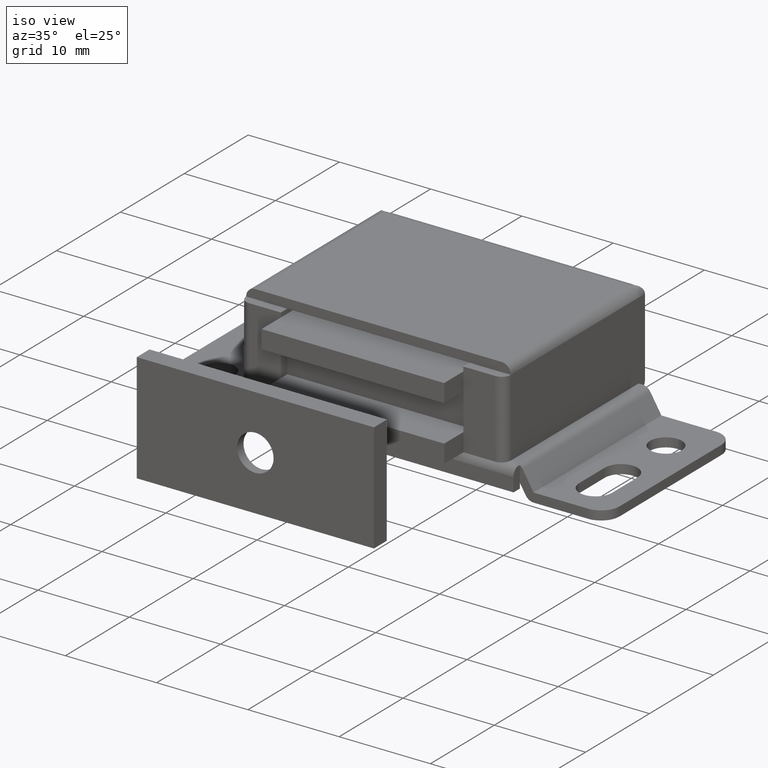
[diagram: clean part render]
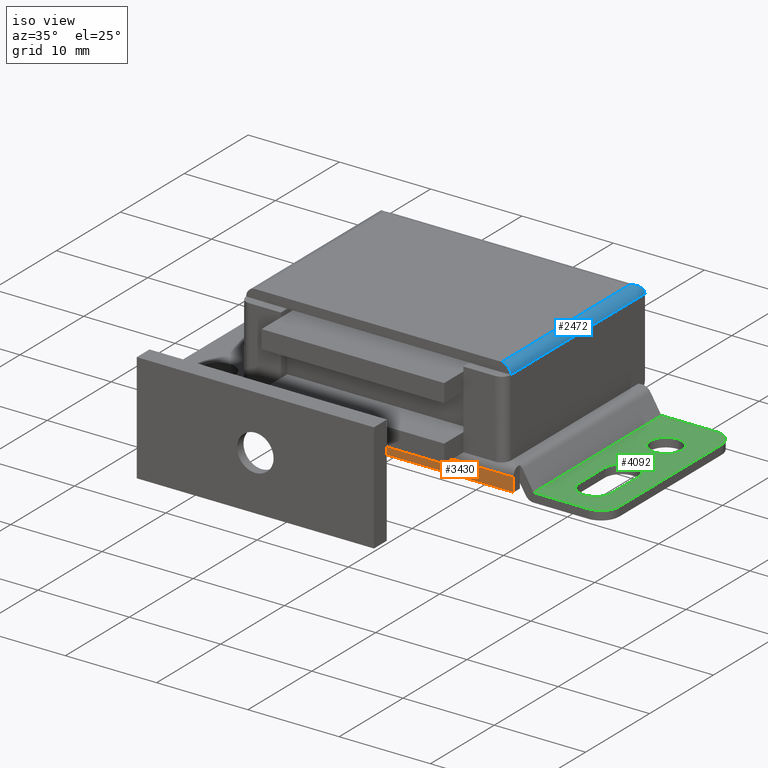
[diagram: same view with three faces highlighted in distinct colors, each labeled with its STEP entity id]
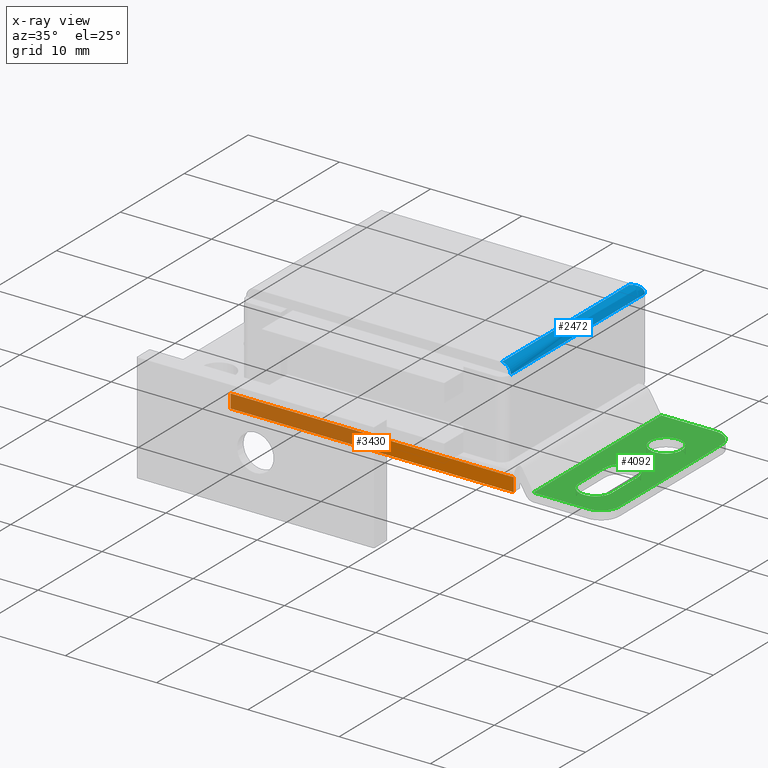
[diagram: x-ray of the same camera — body ghosted, the three highlighted faces saturated]
A machine part, iso view with three faces highlighted in distinct colors.
The next image is the same camera in x-ray (body ghosted, the three faces saturated) — at least one of them is partly hidden behind the body in this view.
Their STEP definitions:

[orange] entity #3430 — the highlighted face is a freeform B-spline surface patch.
#3193=CARTESIAN_POINT('',(-15.500000000000000,-22.0,2.499999999999945));
#3194=VERTEX_POINT('',#3193);
#3208=CARTESIAN_POINT('',(15.500000000000000,-22.0,2.499999999999945));
#3209=VERTEX_POINT('',#3208);
#3210=CARTESIAN_POINT('',(15.500000000000000,-22.0,2.499999999999945));
#3211=CARTESIAN_POINT('',(-15.500000000000000,-22.0,2.499999999999945));
#3212=QUASI_UNIFORM_CURVE('',1,(#3210,#3211),.UNSPECIFIED.,.F.,.U.);
#3213=EDGE_CURVE('',#3209,#3194,#3212,.T.);
#3354=CARTESIAN_POINT('',(-15.500000000000000,-22.0,0.999999999999943));
#3355=VERTEX_POINT('',#3354);
#3356=CARTESIAN_POINT('',(-15.500000000000000,-22.0,0.999999999999943));
#3357=CARTESIAN_POINT('',(-15.500000000000000,-22.0,2.499999999999945));
#3358=QUASI_UNIFORM_CURVE('',1,(#3356,#3357),.UNSPECIFIED.,.F.,.U.);
#3359=EDGE_CURVE('',#3355,#3194,#3358,.T.);
#3386=CARTESIAN_POINT('',(15.500000000000000,-22.0,0.999999999999943));
#3387=VERTEX_POINT('',#3386);
#3388=CARTESIAN_POINT('',(15.500000000000000,-22.0,0.999999999999943));
#3389=CARTESIAN_POINT('',(15.500000000000000,-22.0,2.499999999999945));
#3390=QUASI_UNIFORM_CURVE('',1,(#3388,#3389),.UNSPECIFIED.,.F.,.U.);
#3391=EDGE_CURVE('',#3387,#3209,#3390,.T.);
#3415=CARTESIAN_POINT('',(-17.048449939915990,-22.0,2.574924997092654));
#3416=CARTESIAN_POINT('',(-17.048449939915990,-22.0,0.925074962674099));
#3417=CARTESIAN_POINT('',(17.048450771400780,-22.0,2.574924997092654));
#3418=CARTESIAN_POINT('',(17.048450771400780,-22.0,0.925074962674099));
#3419=B_SPLINE_SURFACE_WITH_KNOTS('',1,1,((#3415,#3417),(#3416,#3418)),.UNSPECIFIED.,.F.,.F.,.U.,(2,2),(2,2),(0.041708334948495,0.958291687403247),(0.0,34.096900711316771),.UNSPECIFIED.);
#3420=ORIENTED_EDGE('',*,*,#3391,.T.);
#3421=ORIENTED_EDGE('',*,*,#3213,.T.);
#3422=ORIENTED_EDGE('',*,*,#3359,.F.);
#3423=CARTESIAN_POINT('',(15.500000000000000,-22.0,0.999999999999943));
#3424=CARTESIAN_POINT('',(-15.500000000000000,-22.0,0.999999999999943));
#3425=QUASI_UNIFORM_CURVE('',1,(#3423,#3424),.UNSPECIFIED.,.F.,.U.);
#3426=EDGE_CURVE('',#3387,#3355,#3425,.T.);
#3427=ORIENTED_EDGE('',*,*,#3426,.F.);
#3428=EDGE_LOOP('',(#3420,#3421,#3422,#3427));
#3429=FACE_OUTER_BOUND('',#3428,.T.);
#3430=ADVANCED_FACE('',(#3429),#3419,.T.);

[blue] entity #2472 — the highlighted face is a freeform B-spline surface patch.
#1988=CARTESIAN_POINT('',(14.500000000000000,-1.009999999999954,12.0));
#1989=VERTEX_POINT('',#1988);
#1997=CARTESIAN_POINT('',(14.500000000000000,-21.0,12.0));
#1998=VERTEX_POINT('',#1997);
#1999=CARTESIAN_POINT('',(14.500000000000000,-1.009999999999954,12.0));
#2000=CARTESIAN_POINT('',(14.500000000000000,-21.0,12.0));
#2001=QUASI_UNIFORM_CURVE('',1,(#1999,#2000),.UNSPECIFIED.,.F.,.U.);
#2002=EDGE_CURVE('',#1989,#1998,#2001,.T.);
#2030=CARTESIAN_POINT('',(13.500000000000000,-1.0,13.0));
#2031=VERTEX_POINT('',#2030);
#2046=CARTESIAN_POINT('',(13.500000000000000,-21.0,13.0));
#2047=VERTEX_POINT('',#2046);
#2053=CARTESIAN_POINT('',(13.500000000000000,-21.0,13.0));
#2054=CARTESIAN_POINT('',(13.500000000000000,-1.0,13.0));
#2055=QUASI_UNIFORM_CURVE('',1,(#2053,#2054),.UNSPECIFIED.,.F.,.U.);
#2056=EDGE_CURVE('',#2047,#2031,#2055,.T.);
#2214=CARTESIAN_POINT('',(14.500000000000000,-21.0,12.0));
#2215=CARTESIAN_POINT('',(14.500000000000000,-21.000000000000004,13.000000000000004));
#2216=CARTESIAN_POINT('',(13.500000000000000,-21.0,13.0));
#2224=(BOUNDED_CURVE()B_SPLINE_CURVE(2,(#2214,#2215,#2216),.UNSPECIFIED.,.F.,.U.)CURVE()GEOMETRIC_REPRESENTATION_ITEM()QUASI_UNIFORM_CURVE()RATIONAL_B_SPLINE_CURVE((1.0,0.707106781186548,1.0))REPRESENTATION_ITEM(''));
#2225=EDGE_CURVE('',#1998,#2047,#2224,.T.);
#2389=CARTESIAN_POINT('',(14.500000000000000,-1.0,12.0));
#2390=VERTEX_POINT('',#2389);
#2396=CARTESIAN_POINT('',(14.500000000000000,-1.009999999999954,12.0));
#2397=CARTESIAN_POINT('',(14.500000000000000,-1.0,12.0));
#2398=QUASI_UNIFORM_CURVE('',1,(#2396,#2397),.UNSPECIFIED.,.F.,.U.);
#2399=EDGE_CURVE('',#1989,#2390,#2398,.T.);
#2432=CARTESIAN_POINT('',(13.473823051692129,0.525000000000001,12.999657324975560));
#2433=CARTESIAN_POINT('',(13.473823051692129,-21.538125000000001,12.999657324975560));
#2434=CARTESIAN_POINT('',(14.574984800554718,0.525000000000000,13.028492260166260));
#2435=CARTESIAN_POINT('',(14.574984800554718,-21.538125000000008,13.028492260166260));
#2436=CARTESIAN_POINT('',(14.497524479380806,0.525000000000001,11.929679924374023));
#2437=CARTESIAN_POINT('',(14.497524479380806,-21.538125000000012,11.929679924374023));
#2445=(BOUNDED_SURFACE()B_SPLINE_SURFACE(1,2,((#2432,#2434,#2436),(#2433,#2435,#2437)),.UNSPECIFIED.,.F.,.F.,.U.)B_SPLINE_SURFACE_WITH_KNOTS((2,2),(3,3),(0.0,22.063125000000010),(0.0,0.994518632334191),.UNSPECIFIED.)GEOMETRIC_REPRESENTATION_ITEM()RATIONAL_B_SPLINE_SURFACE(((1.0,0.670944223154768,0.996392648609106),(1.0,0.670944223154768,0.996392648609106)))REPRESENTATION_ITEM('')SURFACE());
#2446=CARTESIAN_POINT('',(14.500000000000000,0.0,12.0));
#2447=VERTEX_POINT('',#2446);
#2448=CARTESIAN_POINT('',(13.500000000000000,-1.0,13.0));
#2449=CARTESIAN_POINT('',(14.499999999999996,-8.673617E-016,12.999999957853152));
#2450=CARTESIAN_POINT('',(14.500000000000000,-6.505213E-016,12.0));
#2458=(BOUNDED_CURVE()B_SPLINE_CURVE(2,(#2448,#2449,#2450),.UNSPECIFIED.,.F.,.U.)CURVE()GEOMETRIC_REPRESENTATION_ITEM()QUASI_UNIFORM_CURVE()RATIONAL_B_SPLINE_CURVE((1.0,0.707106796087708,1.0))REPRESENTATION_ITEM(''));
#2459=EDGE_CURVE('',#2031,#2447,#2458,.T.);
#2460=ORIENTED_EDGE('',*,*,#2459,.F.);
#2461=ORIENTED_EDGE('',*,*,#2056,.F.);
#2462=ORIENTED_EDGE('',*,*,#2225,.F.);
#2463=ORIENTED_EDGE('',*,*,#2002,.F.);
#2464=ORIENTED_EDGE('',*,*,#2399,.T.);
#2465=CARTESIAN_POINT('',(14.500000000000000,0.0,12.0));
#2466=CARTESIAN_POINT('',(14.500000000000000,-1.0,12.0));
#2467=QUASI_UNIFORM_CURVE('',1,(#2465,#2466),.UNSPECIFIED.,.F.,.U.);
#2468=EDGE_CURVE('',#2447,#2390,#2467,.T.);
#2469=ORIENTED_EDGE('',*,*,#2468,.F.);
#2470=EDGE_LOOP('',(#2460,#2461,#2462,#2463,#2464,#2469));
#2471=FACE_OUTER_BOUND('',#2470,.T.);
#2472=ADVANCED_FACE('',(#2471),#2445,.T.);

[green] entity #4092 — the highlighted face is a freeform B-spline surface patch.
#1106=CARTESIAN_POINT('',(21.106841944264030,-4.253264102766506,0.999999999999890));
#1107=VERTEX_POINT('',#1106);
#1113=CARTESIAN_POINT('',(19.250007000000000,-6.0,0.999999999999890));
#1114=VERTEX_POINT('',#1113);
#1115=CARTESIAN_POINT('',(21.106841944264030,-4.253264102766505,0.999999999999890));
#1116=CARTESIAN_POINT('',(21.053474335811654,-4.250000000000000,0.999999999999890));
#1117=CARTESIAN_POINT('',(21.000007000000000,-4.250000000000000,0.999999999999890));
#1118=CARTESIAN_POINT('',(19.250007000000004,-4.250000000000000,0.999999999999890));
#1119=CARTESIAN_POINT('',(19.250007000000000,-6.0,0.999999999999890));
#1127=(BOUNDED_CURVE()B_SPLINE_CURVE(2,(#1115,#1116,#1117,#1118,#1119),.UNSPECIFIED.,.F.,.U.)B_SPLINE_CURVE_WITH_KNOTS((3,2,3),(0.239332962234261,0.250000000000000,0.500000000000000),.UNSPECIFIED.)CURVE()GEOMETRIC_REPRESENTATION_ITEM()RATIONAL_B_SPLINE_CURVE((0.976072041656682,0.987502787894352,1.0,0.707106781186547,1.0))REPRESENTATION_ITEM(''));
#1128=EDGE_CURVE('',#1107,#1114,#1127,.T.);
#1130=CARTESIAN_POINT('',(20.893172055735970,-7.746735897233495,0.999999999999890));
#1131=VERTEX_POINT('',#1130);
#1132=CARTESIAN_POINT('',(19.250007000000000,-6.0,0.999999999999890));
#1133=CARTESIAN_POINT('',(19.250007000000000,-7.646235617011287,0.999999999999890));
#1134=CARTESIAN_POINT('',(20.893172055735967,-7.746735897233495,0.999999999999890));
#1142=(BOUNDED_CURVE()B_SPLINE_CURVE(2,(#1132,#1133,#1134),.UNSPECIFIED.,.F.,.U.)B_SPLINE_CURVE_WITH_KNOTS((3,3),(0.500000000000000,0.739332962234260),.UNSPECIFIED.)CURVE()GEOMETRIC_REPRESENTATION_ITEM()RATIONAL_B_SPLINE_CURVE((1.0,0.719603993292196,0.976072041656682))REPRESENTATION_ITEM(''));
#1143=EDGE_CURVE('',#1114,#1131,#1142,.T.);
#1217=CARTESIAN_POINT('',(22.750007000000000,-6.0,0.999999999999890));
#1218=VERTEX_POINT('',#1217);
#1219=CARTESIAN_POINT('',(20.893172055735977,-7.746735897233495,0.999999999999890));
#1220=CARTESIAN_POINT('',(20.946539664188343,-7.750000000000001,0.999999999999890));
#1221=CARTESIAN_POINT('',(21.000007000000000,-7.750000000000000,0.999999999999890));
#1222=CARTESIAN_POINT('',(22.750007000000007,-7.750000000000001,0.999999999999890));
#1223=CARTESIAN_POINT('',(22.750007000000000,-6.0,0.999999999999890));
#1231=(BOUNDED_CURVE()B_SPLINE_CURVE(2,(#1219,#1220,#1221,#1222,#1223),.UNSPECIFIED.,.F.,.U.)B_SPLINE_CURVE_WITH_KNOTS((3,2,3),(0.739332962234261,0.750000000000000,1.0),.UNSPECIFIED.)CURVE()GEOMETRIC_REPRESENTATION_ITEM()RATIONAL_B_SPLINE_CURVE((0.976072041656683,0.987502787894352,1.0,0.707106781186547,1.0))REPRESENTATION_ITEM(''));
#1232=EDGE_CURVE('',#1131,#1218,#1231,.T.);
#1234=CARTESIAN_POINT('',(22.750007000000000,-6.0,0.999999999999890));
#1235=CARTESIAN_POINT('',(22.750007000000000,-4.353764382988713,0.999999999999890));
#1236=CARTESIAN_POINT('',(21.106841944264033,-4.253264102766505,0.999999999999890));
#1244=(BOUNDED_CURVE()B_SPLINE_CURVE(2,(#1234,#1235,#1236),.UNSPECIFIED.,.F.,.U.)B_SPLINE_CURVE_WITH_KNOTS((3,3),(0.0,0.239332962234260),.UNSPECIFIED.)CURVE()GEOMETRIC_REPRESENTATION_ITEM()RATIONAL_B_SPLINE_CURVE((1.0,0.719603993292196,0.976072041656682))REPRESENTATION_ITEM(''));
#1245=EDGE_CURVE('',#1218,#1107,#1244,.T.);
#2624=CARTESIAN_POINT('',(23.0,-21.0,0.999999999999943));
#2625=VERTEX_POINT('',#2624);
#2626=CARTESIAN_POINT('',(25.0,-19.0,0.999999999999943));
#2627=VERTEX_POINT('',#2626);
#2628=CARTESIAN_POINT('',(23.0,-21.0,0.999999999999943));
#2629=CARTESIAN_POINT('',(25.0,-21.000000000000004,0.999999999999943));
#2630=CARTESIAN_POINT('',(25.0,-19.0,0.999999999999943));
#2638=(BOUNDED_CURVE()B_SPLINE_CURVE(2,(#2628,#2629,#2630),.UNSPECIFIED.,.F.,.U.)CURVE()GEOMETRIC_REPRESENTATION_ITEM()QUASI_UNIFORM_CURVE()RATIONAL_B_SPLINE_CURVE((1.0,0.707106781186548,1.0))REPRESENTATION_ITEM(''));
#2639=EDGE_CURVE('',#2625,#2627,#2638,.T.);
#2685=CARTESIAN_POINT('',(25.0,-3.0,0.999999999999943));
#2686=VERTEX_POINT('',#2685);
#2687=CARTESIAN_POINT('',(23.0,-1.0,0.999999999999943));
#2688=VERTEX_POINT('',#2687);
#2689=CARTESIAN_POINT('',(25.0,-3.0,0.999999999999943));
#2690=CARTESIAN_POINT('',(25.0,-1.0,0.999999999999943));
#2691=CARTESIAN_POINT('',(23.0,-1.0,0.999999999999943));
#2699=(BOUNDED_CURVE()B_SPLINE_CURVE(2,(#2689,#2690,#2691),.UNSPECIFIED.,.F.,.U.)CURVE()GEOMETRIC_REPRESENTATION_ITEM()QUASI_UNIFORM_CURVE()RATIONAL_B_SPLINE_CURVE((1.0,0.707106781186548,1.0))REPRESENTATION_ITEM(''));
#2700=EDGE_CURVE('',#2686,#2688,#2699,.T.);
#2834=CARTESIAN_POINT('',(19.200006999999999,-17.0,0.999999999999890));
#2835=VERTEX_POINT('',#2834);
#2836=CARTESIAN_POINT('',(22.800007000000001,-17.0,0.999999999999890));
#2837=VERTEX_POINT('',#2836);
#2838=CARTESIAN_POINT('',(19.200006999999999,-17.0,0.999999999999890));
#2839=CARTESIAN_POINT('',(19.199910713949748,-17.191448668909079,0.999999999999890));
#2840=CARTESIAN_POINT('',(19.252187962889629,-17.515355777227931,0.999999999999887));
#2841=CARTESIAN_POINT('',(19.431152057101531,-17.905988253473790,0.999999999999900));
#2842=CARTESIAN_POINT('',(19.656271711611829,-18.217460937538569,0.999999999999884));
#2843=CARTESIAN_POINT('',(19.931103783607789,-18.466574563731509,0.999999999999898));
#2844=CARTESIAN_POINT('',(20.259442128658701,-18.652539124841571,0.999999999999889));
#2845=CARTESIAN_POINT('',(20.588757781719821,-18.763572985159719,0.999999999999883));
#2846=CARTESIAN_POINT('',(20.969983549690131,-18.815388811318439,0.999999999999897));
#2847=CARTESIAN_POINT('',(21.369192057367421,-18.778536472554901,0.999999999999903));
#2848=CARTESIAN_POINT('',(21.748010620706371,-18.650786855028372,0.999999999999881));
#2849=CARTESIAN_POINT('',(22.042052411679521,-18.479402603458141,0.999999999999892));
#2850=CARTESIAN_POINT('',(22.323215585753971,-18.239899136764201,0.999999999999892));
#2851=CARTESIAN_POINT('',(22.586103933978379,-17.898827933832351,0.999999999999876));
#2852=CARTESIAN_POINT('',(22.762970882101101,-17.456513316190438,0.999999999999940));
#2853=CARTESIAN_POINT('',(22.800021503539600,-17.139893893682672,0.999999999999826));
#2854=CARTESIAN_POINT('',(22.800007000000001,-17.0,0.999999999999890));
#2855=B_SPLINE_CURVE_WITH_KNOTS('',3,(#2838,#2839,#2840,#2841,#2842,#2843,#2844,#2845,#2846,#2847,#2848,#2849,#2850,#2851,#2852,#2853,#2854),.UNSPECIFIED.,.F.,.U.,(4,1,1,1,1,1,1,1,1,1,1,1,1,1,4),(0.000000185136557,0.574315607004508,0.971924800910876,1.281186283951960,1.722986533707213,2.076413494935526,2.407759632658149,2.761186900345003,3.225041380243196,3.600569739533496,3.954006547876213,4.241177255099592,4.705067506711686,5.235211796766709,5.654902258403279),.UNSPECIFIED.);
#2856=EDGE_CURVE('',#2835,#2837,#2855,.T.);
#2902=CARTESIAN_POINT('',(22.800007000000001,-13.0,0.999999999999890));
#2903=VERTEX_POINT('',#2902);
#2915=CARTESIAN_POINT('',(22.800007000000001,-13.0,0.999999999999890));
#2916=CARTESIAN_POINT('',(22.800007000000001,-17.0,0.999999999999890));
#2917=QUASI_UNIFORM_CURVE('',1,(#2915,#2916),.UNSPECIFIED.,.F.,.U.);
#2918=EDGE_CURVE('',#2903,#2837,#2917,.T.);
#2941=CARTESIAN_POINT('',(19.200006999999999,-13.0,0.999999999999890));
#2942=VERTEX_POINT('',#2941);
#2943=CARTESIAN_POINT('',(22.800007000000001,-13.0,0.999999999999890));
#2944=CARTESIAN_POINT('',(22.800112634887910,-12.808552353313560,0.999999999999892));
#2945=CARTESIAN_POINT('',(22.744261179086319,-12.462549163384031,0.999999999999887));
#2946=CARTESIAN_POINT('',(22.548121313160390,-12.054341184300860,0.999999999999893));
#2947=CARTESIAN_POINT('',(22.334373093812040,-11.780533869101371,0.999999999999888));
#2948=CARTESIAN_POINT('',(22.107191961400360,-11.569474704582641,0.999999999999896));
#2949=CARTESIAN_POINT('',(21.871525684543549,-11.416159399065659,0.999999999999881));
#2950=CARTESIAN_POINT('',(21.574778609349622,-11.284615789757330,0.999999999999889));
#2951=CARTESIAN_POINT('',(21.287353668408208,-11.212618331396790,0.999999999999892));
#2952=CARTESIAN_POINT('',(20.918886489711060,-11.189971731121760,0.999999999999901));
#2953=CARTESIAN_POINT('',(20.566045839139552,-11.237883859964390,0.999999999999884));
#2954=CARTESIAN_POINT('',(20.219291336065769,-11.366805049326590,0.999999999999898));
#2955=CARTESIAN_POINT('',(19.889637314290479,-11.564345617289950,0.999999999999884));
#2956=CARTESIAN_POINT('',(19.620567746545309,-11.820515292985970,0.999999999999902));
#2957=CARTESIAN_POINT('',(19.378306195916590,-12.183096159768290,0.999999999999889));
#2958=CARTESIAN_POINT('',(19.233442805775329,-12.565572867088569,0.999999999999876));
#2959=CARTESIAN_POINT('',(19.199998383554220,-12.867476837712420,0.999999999999920));
#2960=CARTESIAN_POINT('',(19.200006999999999,-13.0,0.999999999999890));
#2961=B_SPLINE_CURVE_WITH_KNOTS('',3,(#2943,#2944,#2945,#2946,#2947,#2948,#2949,#2950,#2951,#2952,#2953,#2954,#2955,#2956,#2957,#2958,#2959,#2960),.UNSPECIFIED.,.F.,.U.,(4,1,1,1,1,1,1,1,1,1,1,1,1,1,1,4),(0.000000185057393,0.574315606931953,1.038200327626739,1.347457829864564,1.612534365842185,1.965967613145410,2.186865134400117,2.584479241314944,2.849511219758837,3.291325489498450,3.644745240346090,3.954006547853025,4.439985769426125,4.749242418879658,5.257318960272599,5.654902258403602),.UNSPECIFIED.);
#2962=EDGE_CURVE('',#2903,#2942,#2961,.T.);
#3008=CARTESIAN_POINT('',(19.200006999999999,-17.0,0.999999999999890));
#3009=CARTESIAN_POINT('',(19.200006999999999,-13.0,0.999999999999890));
#3010=QUASI_UNIFORM_CURVE('',1,(#3008,#3009),.UNSPECIFIED.,.F.,.U.);
#3011=EDGE_CURVE('',#2835,#2942,#3010,.T.);
#3972=CARTESIAN_POINT('',(25.0,-19.0,0.999999999999943));
#3973=CARTESIAN_POINT('',(25.0,-3.0,0.999999999999943));
#3974=QUASI_UNIFORM_CURVE('',1,(#3972,#3973),.UNSPECIFIED.,.F.,.U.);
#3975=EDGE_CURVE('',#2627,#2686,#3974,.T.);
#3986=CARTESIAN_POINT('',(16.999990999996999,-1.0,0.999999999999943));
#3987=VERTEX_POINT('',#3986);
#3994=CARTESIAN_POINT('',(16.999990999996999,-21.0,0.999999999999943));
#3995=VERTEX_POINT('',#3994);
#4001=CARTESIAN_POINT('',(16.999990999996999,-21.0,0.999999999999943));
#4002=CARTESIAN_POINT('',(16.999990999996999,-1.0,0.999999999999943));
#4003=QUASI_UNIFORM_CURVE('',1,(#4001,#4002),.UNSPECIFIED.,.F.,.U.);
#4004=EDGE_CURVE('',#3995,#3987,#4003,.T.);
#4020=CARTESIAN_POINT('',(16.999990999996999,-21.0,0.999999999999943));
#4021=CARTESIAN_POINT('',(23.0,-21.0,0.999999999999943));
#4022=QUASI_UNIFORM_CURVE('',1,(#4020,#4021),.UNSPECIFIED.,.F.,.U.);
#4023=EDGE_CURVE('',#3995,#2625,#4022,.T.);
#4063=CARTESIAN_POINT('',(16.600390565952420,-21.998999961236120,0.999999999999943));
#4064=CARTESIAN_POINT('',(25.399600648621540,-21.998999961236120,0.999999999999943));
#4065=CARTESIAN_POINT('',(16.600390565952420,-0.000999502322078,0.999999999999943));
#4066=CARTESIAN_POINT('',(25.399600648621540,-0.000999502322078,0.999999999999943));
#4067=B_SPLINE_SURFACE_WITH_KNOTS('',1,1,((#4063,#4065),(#4064,#4066)),.UNSPECIFIED.,.F.,.F.,.U.,(2,2),(2,2),(0.0,8.799210082669116),(0.0,21.998000458914049),.UNSPECIFIED.);
#4068=ORIENTED_EDGE('',*,*,#3975,.T.);
#4069=ORIENTED_EDGE('',*,*,#2700,.T.);
#4070=CARTESIAN_POINT('',(16.999990999996999,-1.0,0.999999999999943));
#4071=CARTESIAN_POINT('',(23.0,-1.0,0.999999999999943));
#4072=QUASI_UNIFORM_CURVE('',1,(#4070,#4071),.UNSPECIFIED.,.F.,.U.);
#4073=EDGE_CURVE('',#3987,#2688,#4072,.T.);
#4074=ORIENTED_EDGE('',*,*,#4073,.F.);
#4075=ORIENTED_EDGE('',*,*,#4004,.F.);
#4076=ORIENTED_EDGE('',*,*,#4023,.T.);
#4077=ORIENTED_EDGE('',*,*,#2639,.T.);
#4078=EDGE_LOOP('',(#4068,#4069,#4074,#4075,#4076,#4077));
#4079=FACE_OUTER_BOUND('',#4078,.T.);
#4080=ORIENTED_EDGE('',*,*,#2856,.F.);
#4081=ORIENTED_EDGE('',*,*,#3011,.T.);
#4082=ORIENTED_EDGE('',*,*,#2962,.F.);
#4083=ORIENTED_EDGE('',*,*,#2918,.T.);
#4084=EDGE_LOOP('',(#4080,#4081,#4082,#4083));
#4085=FACE_BOUND('',#4084,.T.);
#4086=ORIENTED_EDGE('',*,*,#1143,.F.);
#4087=ORIENTED_EDGE('',*,*,#1128,.F.);
#4088=ORIENTED_EDGE('',*,*,#1245,.F.);
#4089=ORIENTED_EDGE('',*,*,#1232,.F.);
#4090=EDGE_LOOP('',(#4086,#4087,#4088,#4089));
#4091=FACE_BOUND('',#4090,.T.);
#4092=ADVANCED_FACE('',(#4079,#4085,#4091),#4067,.T.);